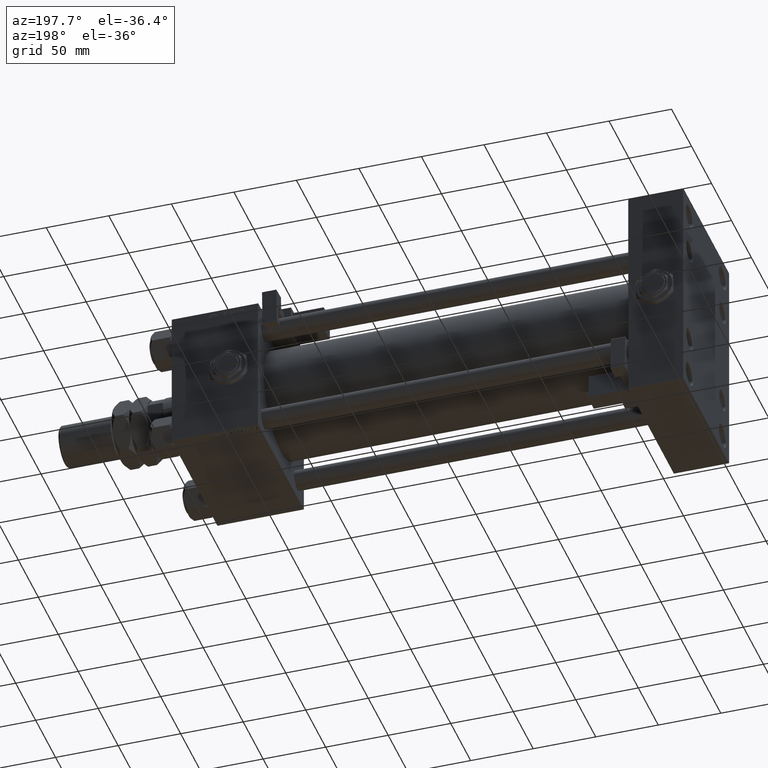
[diagram: clean part render]
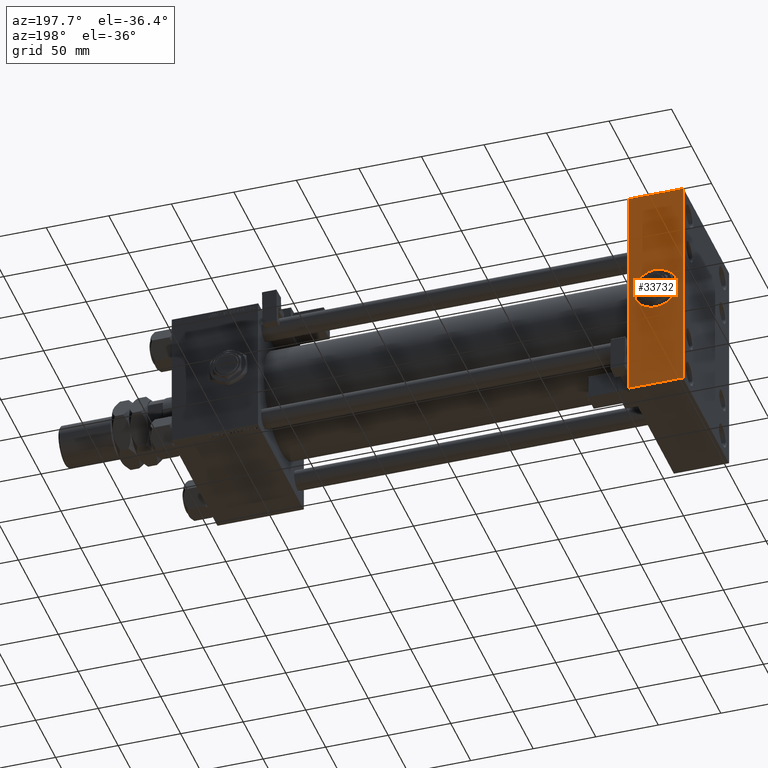
[diagram: same view with one face highlighted and labeled with its STEP entity id]
A machine part, auxiliary view. The second image highlights one B-rep face of the part: STEP entity #33732.
In plain terms, the highlighted planar face has unit normal (0, 1, 0).
Its self-contained STEP definition (entity closure, byte-faithful):
#971 = LINE ( 'NONE', #14109, #28334 ) ;
#1708 = CARTESIAN_POINT ( 'NONE',  ( 44.00000000000000000, 57.50000000000000000, 90.00000000000000000 ) ) ;
#1752 = EDGE_LOOP ( 'NONE', ( #3159, #36832, #43463, #51813 ) ) ;
#2909 = DIRECTION ( 'NONE',  ( -1.000000000000000000, 0.000000000000000000, 0.000000000000000000 ) ) ;
#3159 = ORIENTED_EDGE ( 'NONE', *, *, #17890, .T. ) ;
#3422 = EDGE_CURVE ( 'NONE', #10302, #10473, #10821, .T. ) ;
#5162 = DIRECTION ( 'NONE',  ( 0.000000000000000000, 1.000000000000000000, 0.000000000000000000 ) ) ;
#6469 = EDGE_LOOP ( 'NONE', ( #32677, #41574 ) ) ;
#9253 = VERTEX_POINT ( 'NONE', #31280 ) ;
#9556 = CIRCLE ( 'NONE', #36911, 17.50000000000000000 ) ;
#9795 = DIRECTION ( 'NONE',  ( 0.000000000000000000, 0.000000000000000000, 1.000000000000000000 ) ) ;
#10302 = VERTEX_POINT ( 'NONE', #54881 ) ;
#10473 = VERTEX_POINT ( 'NONE', #14095 ) ;
#10821 = LINE ( 'NONE', #23080, #41312 ) ;
#13257 = EDGE_CURVE ( 'NONE', #10302, #9253, #971, .T. ) ;
#14095 = CARTESIAN_POINT ( 'NONE',  ( 44.00000000000000000, 57.50000000000000000, 89.49999999999997158 ) ) ;
#14109 = CARTESIAN_POINT ( 'NONE',  ( 0.000000000000000000, 57.50000000000000000, 90.00000000000000000 ) ) ;
#14278 = FACE_BOUND ( 'NONE', #6469, .T. ) ;
#17890 = EDGE_CURVE ( 'NONE', #10473, #48430, #39194, .T. ) ;
#22907 = CARTESIAN_POINT ( 'NONE',  ( 22.00000000000000000, 57.50000000000000000, 0.000000000000000000 ) ) ;
#23080 = CARTESIAN_POINT ( 'NONE',  ( 44.00000000000000000, 57.50000000000000000, 89.49999999999997158 ) ) ;
#24585 = LINE ( 'NONE', #41957, #34628 ) ;
#26086 = DIRECTION ( 'NONE',  ( 0.000000000000000000, 0.000000000000000000, -1.000000000000000000 ) ) ;
#27000 = EDGE_CURVE ( 'NONE', #41976, #45727, #9556, .T. ) ;
#28334 = VECTOR ( 'NONE', #26086, 1000.000000000000000 ) ;
#28971 = AXIS2_PLACEMENT_3D ( 'NONE', #1708, #31656, #49035 ) ;
#31280 = CARTESIAN_POINT ( 'NONE',  ( 0.000000000000000000, 57.50000000000000000, -89.49999999999994316 ) ) ;
#31656 = DIRECTION ( 'NONE',  ( -0.000000000000000000, 1.000000000000000000, 0.000000000000000000 ) ) ;
#31931 = FACE_OUTER_BOUND ( 'NONE', #1752, .T. ) ;
#32677 = ORIENTED_EDGE ( 'NONE', *, *, #42004, .F. ) ;
#33060 = AXIS2_PLACEMENT_3D ( 'NONE', #52488, #5162, #49050 ) ;
#33732 = ADVANCED_FACE ( 'NONE', ( #14278, #31931 ), #40770, .T. ) ;
#34374 = CARTESIAN_POINT ( 'NONE',  ( 44.00000000000000000, 57.50000000000000000, 90.00000000000000000 ) ) ;
#34628 = VECTOR ( 'NONE', #2909, 1000.000000000000000 ) ;
#35811 = EDGE_CURVE ( 'NONE', #48430, #9253, #24585, .T. ) ;
#36832 = ORIENTED_EDGE ( 'NONE', *, *, #35811, .T. ) ;
#36911 = AXIS2_PLACEMENT_3D ( 'NONE', #22907, #52834, #9795 ) ;
#39194 = LINE ( 'NONE', #34374, #40232 ) ;
#39372 = CARTESIAN_POINT ( 'NONE',  ( 44.00000000000000000, 57.50000000000000000, -89.49999999999994316 ) ) ;
#40175 = DIRECTION ( 'NONE',  ( 1.000000000000000000, 0.000000000000000000, 0.000000000000000000 ) ) ;
#40209 = CARTESIAN_POINT ( 'NONE',  ( 22.00000000000000355, 57.50000000000000000, -17.50000000000000000 ) ) ;
#40232 = VECTOR ( 'NONE', #52310, 1000.000000000000000 ) ;
#40770 = PLANE ( 'NONE',  #28971 ) ;
#41312 = VECTOR ( 'NONE', #40175, 1000.000000000000000 ) ;
#41574 = ORIENTED_EDGE ( 'NONE', *, *, #27000, .F. ) ;
#41957 = CARTESIAN_POINT ( 'NONE',  ( 44.00000000000000000, 57.50000000000000000, -89.50000000000000000 ) ) ;
#41976 = VERTEX_POINT ( 'NONE', #40209 ) ;
#42004 = EDGE_CURVE ( 'NONE', #45727, #41976, #52177, .T. ) ;
#43127 = CARTESIAN_POINT ( 'NONE',  ( 22.00000000000000000, 57.50000000000000000, 17.50000000000000000 ) ) ;
#43463 = ORIENTED_EDGE ( 'NONE', *, *, #13257, .F. ) ;
#45727 = VERTEX_POINT ( 'NONE', #43127 ) ;
#48430 = VERTEX_POINT ( 'NONE', #39372 ) ;
#49035 = DIRECTION ( 'NONE',  ( 0.000000000000000000, -0.000000000000000000, 1.000000000000000000 ) ) ;
#49050 = DIRECTION ( 'NONE',  ( 0.000000000000000000, 0.000000000000000000, 1.000000000000000000 ) ) ;
#51813 = ORIENTED_EDGE ( 'NONE', *, *, #3422, .T. ) ;
#52177 = CIRCLE ( 'NONE', #33060, 17.50000000000000000 ) ;
#52310 = DIRECTION ( 'NONE',  ( 0.000000000000000000, 0.000000000000000000, -1.000000000000000000 ) ) ;
#52488 = CARTESIAN_POINT ( 'NONE',  ( 22.00000000000000000, 57.50000000000000000, 0.000000000000000000 ) ) ;
#52834 = DIRECTION ( 'NONE',  ( 0.000000000000000000, 1.000000000000000000, 0.000000000000000000 ) ) ;
#54881 = CARTESIAN_POINT ( 'NONE',  ( 0.000000000000000000, 57.50000000000000000, 89.49999999999997158 ) ) ;